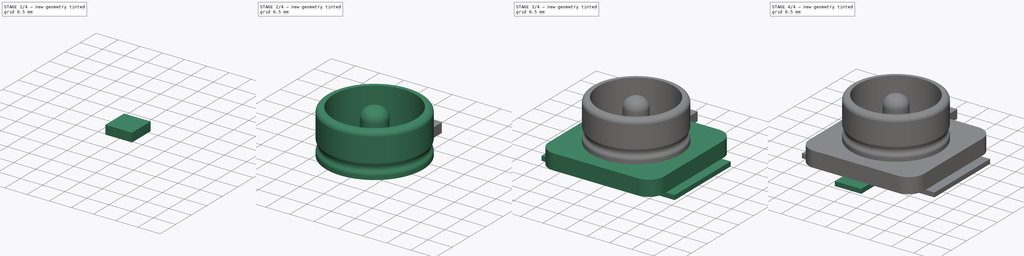
[diagram: build sequence overview — one tinted view per stage of 4, left to right]
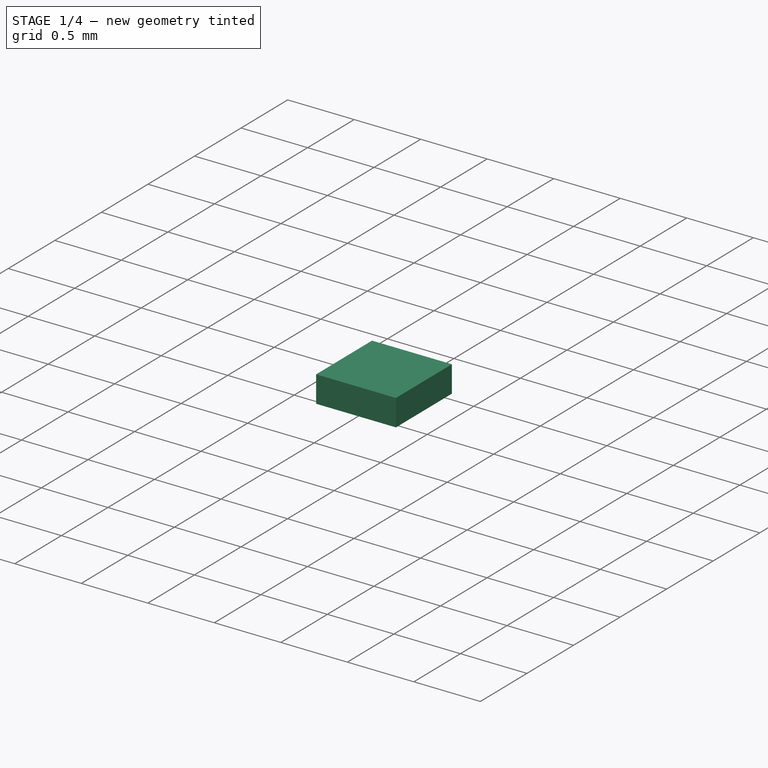
[diagram: stage 1 of 4 — iso view after this stage's code; geometry added in this stage tinted green]
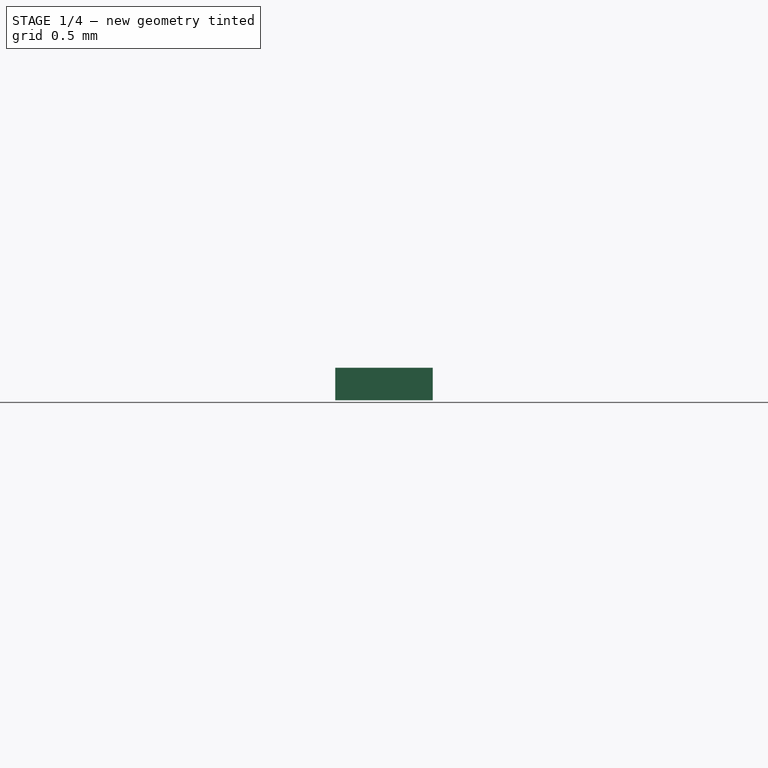
[diagram: stage 1 of 4 — front view after this stage's code; geometry added in this stage tinted green]
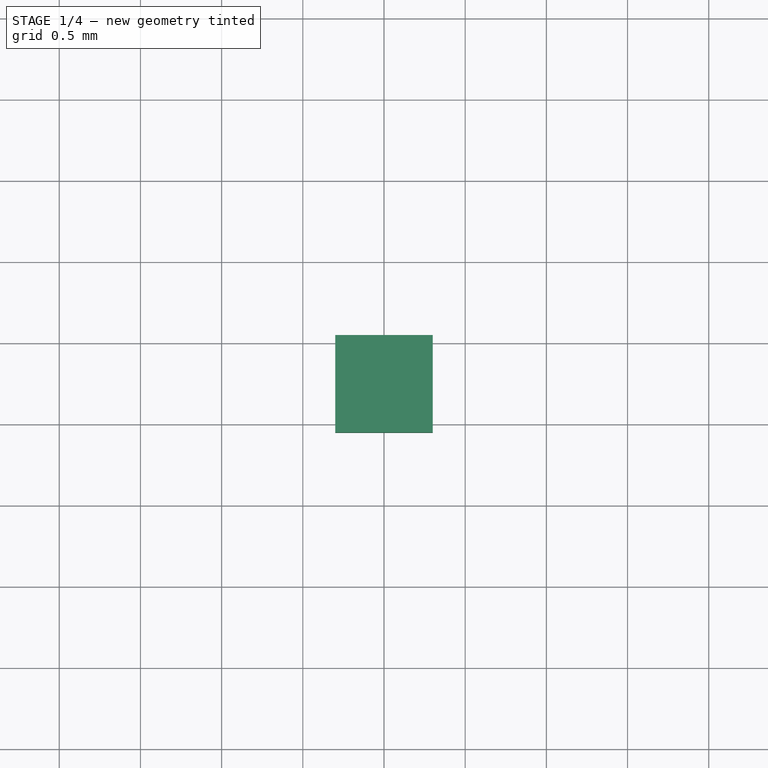
[diagram: stage 1 of 4 — top view after this stage's code; geometry added in this stage tinted green]
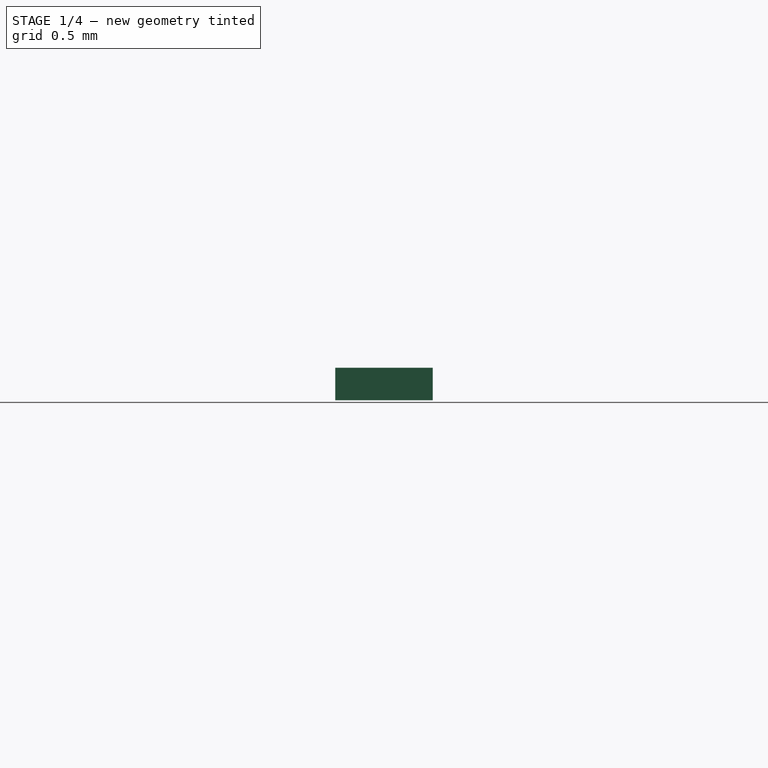
[diagram: stage 1 of 4 — right view after this stage's code; geometry added in this stage tinted green]
FCSTD DOCUMENT  (FreeCAD 0.22R38231 (Git))
Label: U.FL
License: All rights reserved
LicenseURL: https://en.wikipedia.org/wiki/All_rights_reserved
objects: Sketcher::SketchObject×7, PartDesign::Pad×7, PartDesign::Body×7, PartDesign::ShapeBinder×3, PartDesign::Revolution×1, PartDesign::Fillet×1, Part::MultiFuse×1
note: 45 computed .brp shape members not serialized (recipe doc carries the construction recipe); baked Part::Feature solids carry a one-line shape summary decoded from their .brp

FEATURE [PartDesign::Body] Body006
  AllowCompound = false
  Group = -> [CopyPad004,Sketch006,Pad005,Fillet]
  Origin = -> Origin006
  Tip = -> Fillet
FEATURE [PartDesign::ShapeBinder] CopyPad005
  Placement = pos=(0,0,0.35) rot=(0,0,1;0rad)
  TraceSupport = false
FEATURE [Sketcher::SketchObject] Sketch007
  AttachmentSupport = -> [CopyPad005]
  FullyConstrained = true
  MapMode = 5
  Placement = pos=(0,0,0.45) rot=(0,0,1;0rad)
  sketch-geometry (4):
    g0: LineSegment StartX=-0.3 StartY=1.55 StartZ=0 EndX=-0.3 EndY=0.95 EndZ=0
    g1: LineSegment StartX=-0.3 StartY=0.95 StartZ=0 EndX=0.3 EndY=0.95 EndZ=0
    g2: LineSegment StartX=0.3 StartY=0.95 StartZ=0 EndX=0.3 EndY=1.55 EndZ=0
    g3: LineSegment StartX=0.3 StartY=1.55 StartZ=0 EndX=-0.3 EndY=1.55 EndZ=0
  constraints (12):
    c: Coincident(g0,g1)
    c: Coincident(g1,g2)
    c: Coincident(g2,g3)
    c: Coincident(g3,g0)
    c: Vertical(g0)
    c: Vertical(g2)
    c: Horizontal(g1)
    c: Horizontal(g3)
    c: DistanceX(g3,g3) = 0.6
    c: DistanceX(g0,g-1) = 0.3
    c: DistanceY(g-1,g2) = 1.55
    c: DistanceY(g0,g0) = 0.6
FEATURE [PartDesign::Pad] Pad006
  Direction = (0,0,1)
  Length = 0.1
  Length2 = 10
  Placement = pos=(0,0,0.35) rot=(0,0,1;0rad)
  Profile = -> Sketch007
  ReferenceAxis = -> Sketch007 [N_Axis]
  Refine = true
  Suppressed = false
  Type = 0
FEATURE [PartDesign::Pad] Pad007
  BaseFeature = -> Pad006
  Direction = (0,0,-1)
  Length = 0.1
  Length2 = 10
  Placement = pos=(0,0,0.35) rot=(0,0,1;0rad)
  Profile = -> Pad006 [Face5]
  Refine = true
  Suppressed = false
  Type = 0
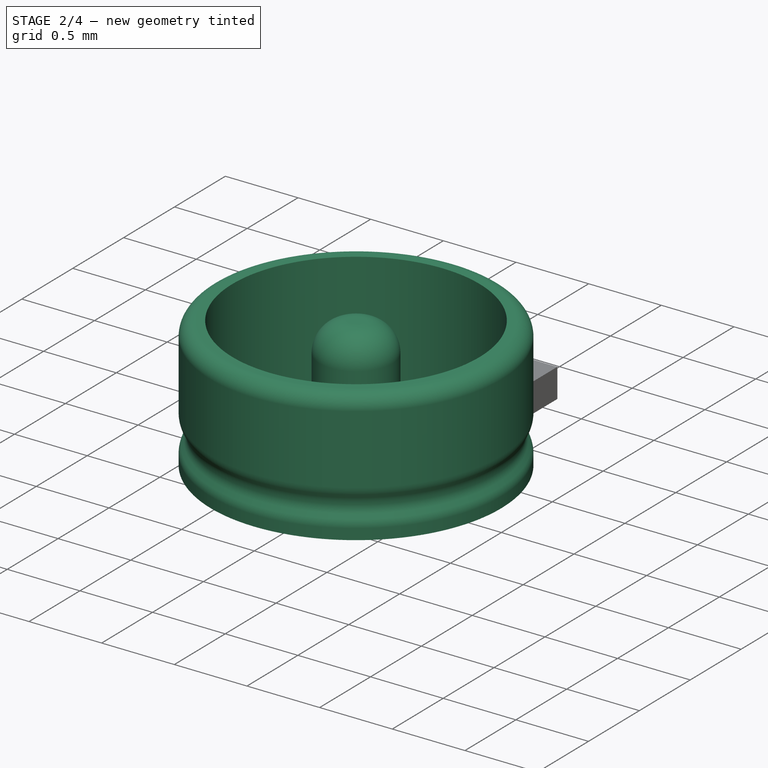
[diagram: stage 2 of 4 — iso view after this stage's code; geometry added in this stage tinted green]
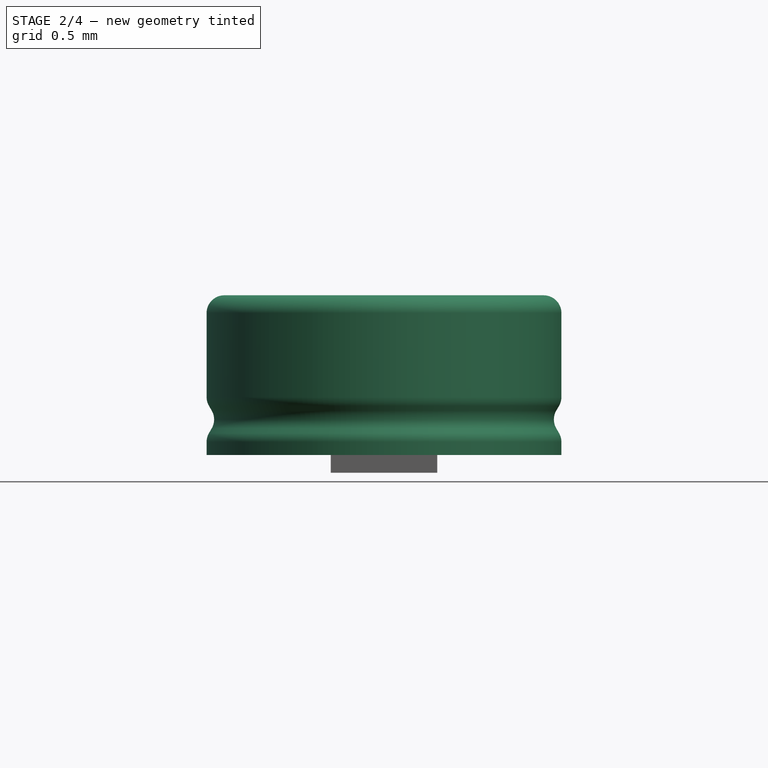
[diagram: stage 2 of 4 — front view after this stage's code; geometry added in this stage tinted green]
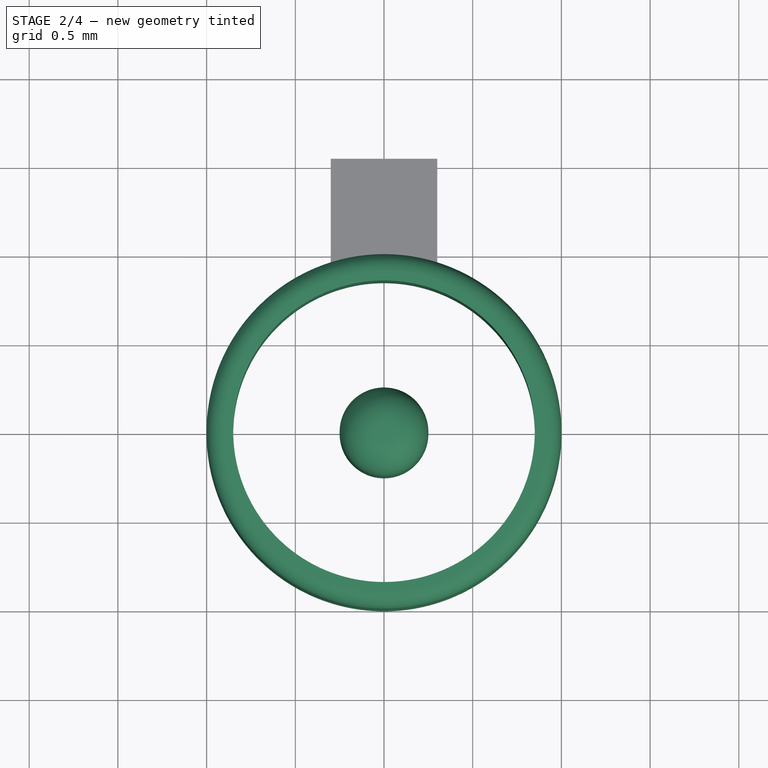
[diagram: stage 2 of 4 — top view after this stage's code; geometry added in this stage tinted green]
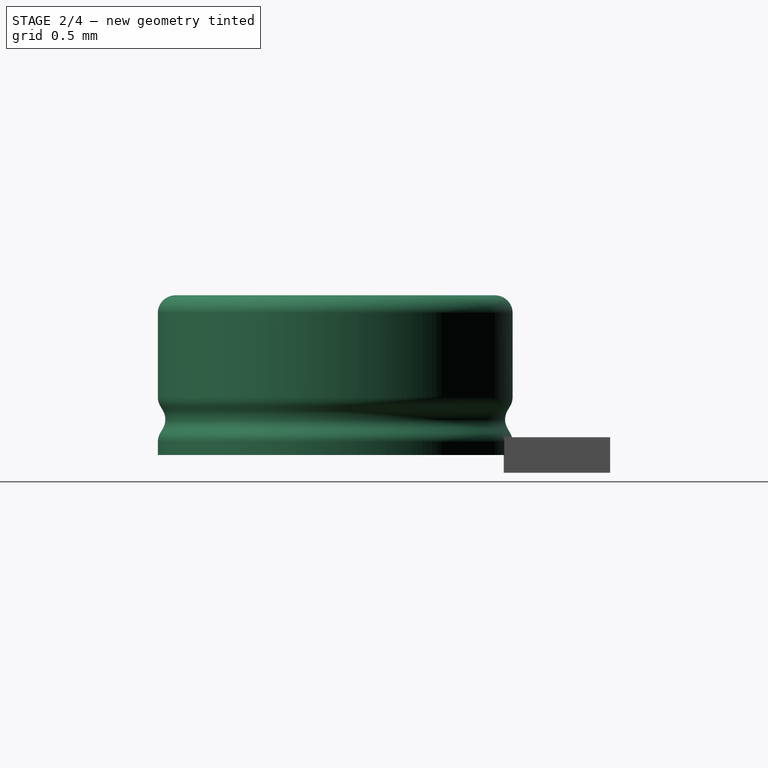
[diagram: stage 2 of 4 — right view after this stage's code; geometry added in this stage tinted green]
FEATURE [PartDesign::Body] Body004
  AllowCompound = false
  Group = -> [CopyPad,Sketch004,Pad004]
  Origin = -> Origin004
  Tip = -> Pad004
FEATURE [Sketcher::SketchObject] Sketch005
  AttachmentSupport = -> [XZ_Plane005]
  FullyConstrained = true
  MapMode = 5
  Placement = pos=(0,0,0) rot=(1,0,0;1.5708rad)
  sketch-geometry (15):
    g0: LineSegment StartX=-0.9 StartY=1.35 StartZ=0 EndX=-0.85 EndY=1.35 EndZ=0
    g1: LineSegment StartX=-0.85 StartY=1.35 StartZ=0 EndX=-0.85 EndY=0.45 EndZ=0
    g2: LineSegment StartX=-1 StartY=1.25 StartZ=0 EndX=-1 EndY=0.776795 EndZ=0
    g3: LineSegment StartX=-0.986603 StartY=0.726795 StartZ=0 EndX=-0.971132 EndY=0.7 EndZ=0
    g4: LineSegment StartX=-0.971132 StartY=0.6 StartZ=0 EndX=-0.986603 EndY=0.573205 EndZ=0
    g5: LineSegment StartX=-1 StartY=0.523205 StartZ=0 EndX=-1 EndY=0.45 EndZ=0
    g6: LineSegment StartX=-1 StartY=0.45 StartZ=0 EndX=-0.85 EndY=0.45 EndZ=0
    g7: ArcOfCircle CenterX=-0.9 CenterY=1.25 CenterZ=0 NormalX=0 NormalY=0 NormalZ=1 AngleXU=0 Radius=0.1 StartAngle=1.5708 EndAngle=3.14159
    g8: GeomPoint X=-1 Y=1.35 Z=0
    g9: ArcOfCircle CenterX=-0.9 CenterY=0.776795 CenterZ=0 NormalX=0 NormalY=0 NormalZ=1 AngleXU=0 Radius=0.1 StartAngle=3.14159 EndAngle=3.66519
    g10: GeomPoint X=-1 Y=0.75 Z=0
    g11: ArcOfCircle CenterX=-1.05774 CenterY=0.65 CenterZ=0 NormalX=0 NormalY=0 NormalZ=1 AngleXU=0 Radius=0.1 StartAngle=5.75959 EndAngle=6.80678
    g12: GeomPoint X=-0.942265 Y=0.65 Z=0
    g13: ArcOfCircle CenterX=-0.9 CenterY=0.523205 CenterZ=0 NormalX=0 NormalY=0 NormalZ=1 AngleXU=0 Radius=0.1 StartAngle=2.61799 EndAngle=3.14159
    g14: GeomPoint X=-1 Y=0.55 Z=0
  constraints (37):
    c: Horizontal(g0)
    c: Coincident(g1,g0)
    c: Vertical(g1)
    c: Vertical(g2)
    c: Vertical(g5)
    c: Coincident(g6,g5)
    c: Horizontal(g6)
    c: DistanceY(g1,g1) = 0.9
    c: Coincident(g1,g6)
    c: DistanceX(g8,g-1) = 1
    c: DistanceX(g8,g0) = 0.15
    c: DistanceY(g10,g8) = 0.6
    c: DistanceY(g-1,g1) = 0.45
    c: DistanceY(g5,g14) = 0.1
    c: PointOnObject(g8,g0)
    c: PointOnObject(g8,g2)
    c: Tangent(g0,g7) = 1.5708
    c: Tangent(g2,g7) = -1.5708
    c: PointOnObject(g10,g3)
    c: PointOnObject(g10,g2)
    c: Tangent(g3,g9) = -1.5708
    c: Tangent(g2,g9) = -1.5708
    c: PointOnObject(g12,g4)
    c: PointOnObject(g12,g3)
    c: Tangent(g4,g11) = 1.5708
    c: Tangent(g3,g11) = 1.5708
    c: PointOnObject(g14,g5)
    c: PointOnObject(g14,g4)
    c: Tangent(g5,g13) = -1.5708
    c: Tangent(g4,g13) = -1.5708
    c: Radius(g13) = 0.1
    c: Radius(g11) = 0.1
    c: Radius(g9) = 0.1
    c: Radius(g7) = 0.1
    c: Angle(g3,g2) = 2.61799
    c: Angle(g5,g4) = 2.61799
    c: DistanceX(g6,g6) = 0.15
FEATURE [PartDesign::Revolution] Revolution
  Angle = 360
  Angle2 = 60
  Axis = (0,2e-16,1)
  Base = (0,0,0)
  Placement = pos=(0,0,0) rot=(1,0,0;1.5708rad)
  Profile = -> Sketch005
  ReferenceAxis = -> Sketch005 [V_Axis]
  Refine = true
  Suppressed = false
  Type = 0
FEATURE [PartDesign::Body] Body005
  AllowCompound = false
  Group = -> [Sketch005,Revolution]
  Origin = -> Origin005
  Tip = -> Revolution
FEATURE [PartDesign::ShapeBinder] CopyPad004
  Placement = pos=(0,0,0.35) rot=(0,0,1;0rad)
  TraceSupport = false
FEATURE [Sketcher::SketchObject] Sketch006
  AttachmentSupport = -> [CopyPad004]
  FullyConstrained = true
  MapMode = 5
  Placement = pos=(0,0,0.45) rot=(0,0,1;0rad)
  sketch-geometry (1):
    g0: Circle CenterX=0 CenterY=0 CenterZ=0 NormalX=0 NormalY=0 NormalZ=1 AngleXU=0 Radius=0.25
  constraints (2):
    c: Coincident(g0,g-1)
    c: Diameter(g0) = 0.5
FEATURE [PartDesign::Pad] Pad005
  Direction = (0,0,1)
  Length = 0.9
  Length2 = 10
  Placement = pos=(0,0,0.35) rot=(0,0,1;0rad)
  Profile = -> Sketch006
  ReferenceAxis = -> Sketch006 [N_Axis]
  Refine = true
  Suppressed = false
  Type = 0
FEATURE [PartDesign::Fillet] Fillet
  Base = -> Pad005 [Edge3]
  BaseFeature = -> Pad005
  Placement = pos=(0,0,0.35) rot=(0,0,1;0rad)
  Radius = 0.2
  Refine = true
  SupportTransform = false
  Suppressed = false
  UseAllEdges = false
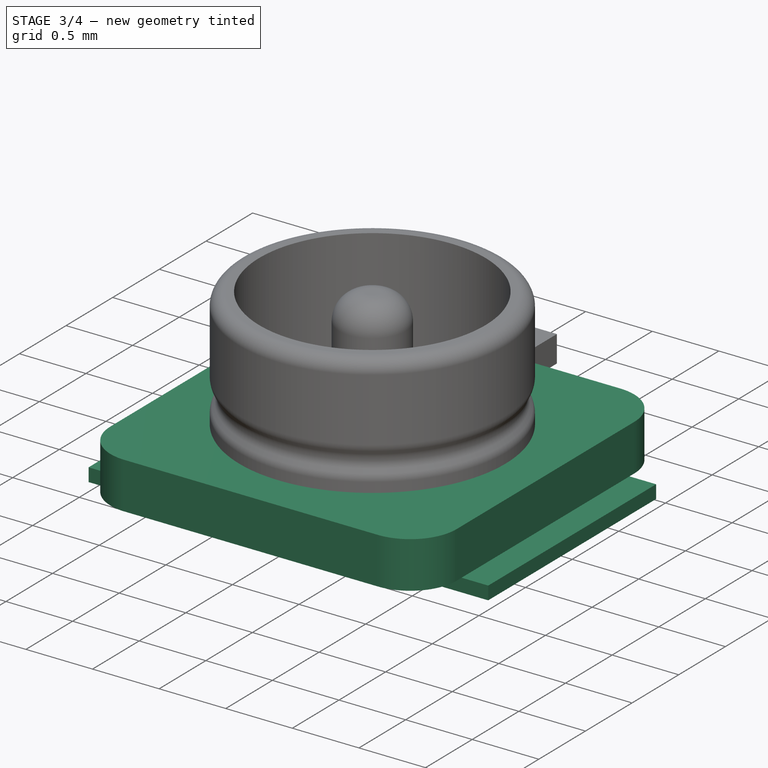
[diagram: stage 3 of 4 — iso view after this stage's code; geometry added in this stage tinted green]
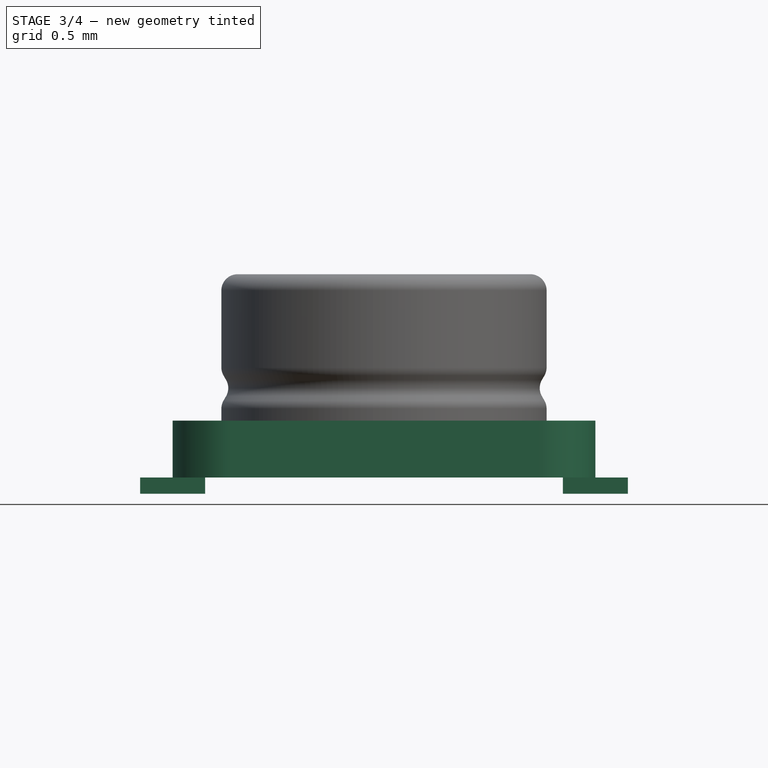
[diagram: stage 3 of 4 — front view after this stage's code; geometry added in this stage tinted green]
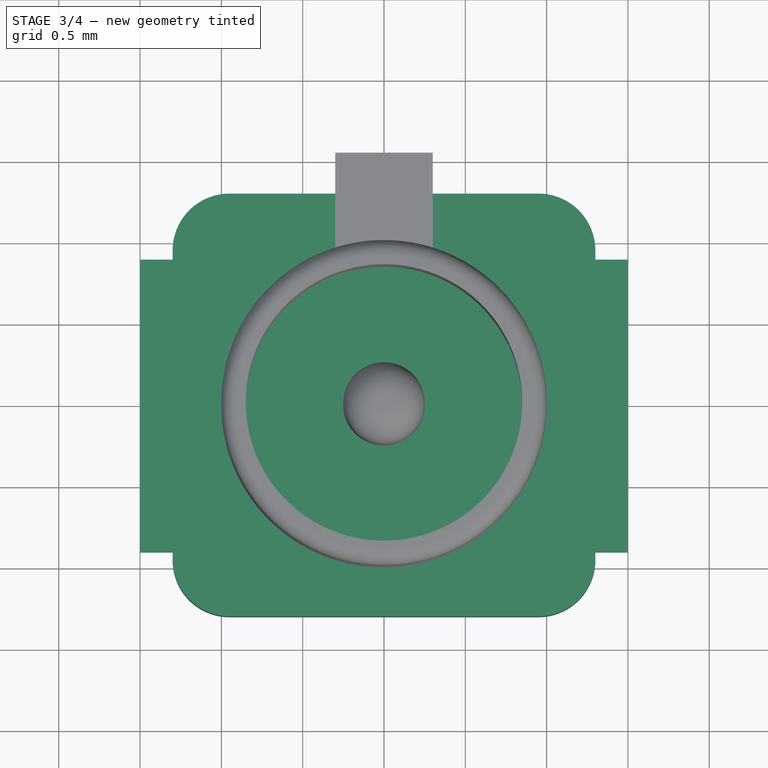
[diagram: stage 3 of 4 — top view after this stage's code; geometry added in this stage tinted green]
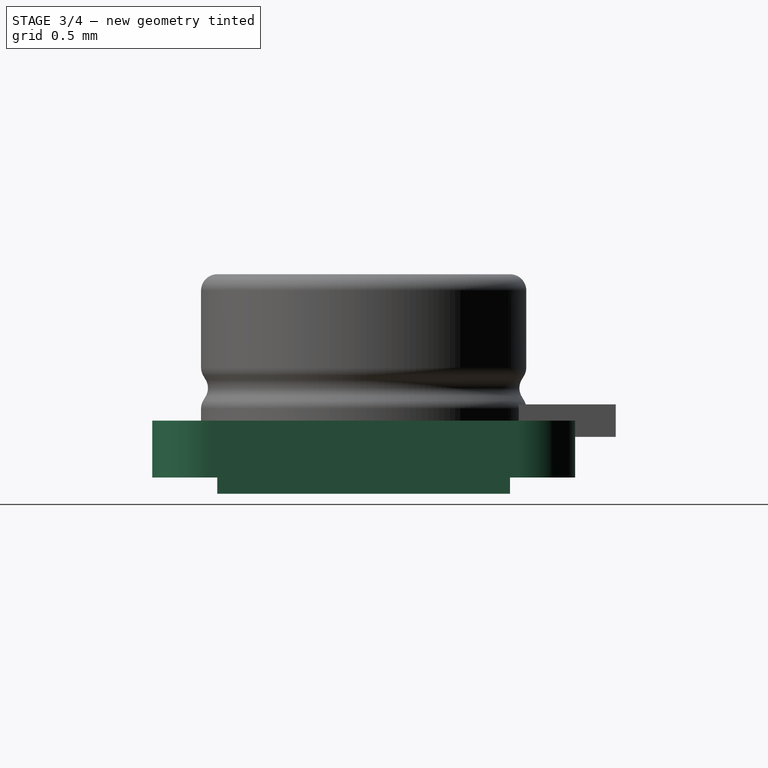
[diagram: stage 3 of 4 — right view after this stage's code; geometry added in this stage tinted green]
FEATURE [PartDesign::Body] Body
  AllowCompound = false
  Group = -> [Sketch,Pad]
  Origin = -> Origin
  Tip = -> Pad
FEATURE [Sketcher::SketchObject] Sketch002
  AttachmentSupport = -> [XY_Plane002]
  FullyConstrained = true
  MapMode = 5
  sketch-geometry (4):
    g0: LineSegment StartX=-1.5 StartY=0.9 StartZ=0 EndX=-1.5 EndY=-0.9 EndZ=0
    g1: LineSegment StartX=-1.5 StartY=-0.9 StartZ=0 EndX=-1.1 EndY=-0.9 EndZ=0
    g2: LineSegment StartX=-1.1 StartY=-0.9 StartZ=0 EndX=-1.1 EndY=0.9 EndZ=0
    g3: LineSegment StartX=-1.1 StartY=0.9 StartZ=0 EndX=-1.5 EndY=0.9 EndZ=0
  constraints (12):
    c: Coincident(g0,g1)
    c: Coincident(g1,g2)
    c: Coincident(g2,g3)
    c: Coincident(g3,g0)
    c: Vertical(g0)
    c: Vertical(g2)
    c: Horizontal(g1)
    c: Horizontal(g3)
    c: DistanceY(g2,g2) = 1.8
    c: DistanceY(g-1,g0) = 0.9
    c: DistanceX(g1,g1) = 0.4
    c: DistanceX(g0,g-1) = 1.5
FEATURE [PartDesign::Pad] Pad002
  Direction = (0,0,1)
  Length = 0.1
  Length2 = 10
  Profile = -> Sketch002
  ReferenceAxis = -> Sketch002 [N_Axis]
  Refine = true
  Suppressed = false
  Type = 0
FEATURE [PartDesign::Body] Body002
  AllowCompound = false
  Group = -> [Sketch002,Pad002]
  Origin = -> Origin002
  Tip = -> Pad002
FEATURE [Sketcher::SketchObject] Sketch003
  AttachmentSupport = -> [XY_Plane003]
  FullyConstrained = true
  MapMode = 5
  sketch-geometry (4):
    g0: LineSegment StartX=1.1 StartY=0.9 StartZ=0 EndX=1.1 EndY=-0.9 EndZ=0
    g1: LineSegment StartX=1.1 StartY=-0.9 StartZ=0 EndX=1.5 EndY=-0.9 EndZ=0
    g2: LineSegment StartX=1.5 StartY=-0.9 StartZ=0 EndX=1.5 EndY=0.9 EndZ=0
    g3: LineSegment StartX=1.5 StartY=0.9 StartZ=0 EndX=1.1 EndY=0.9 EndZ=0
  constraints (12):
    c: Coincident(g0,g1)
    c: Coincident(g1,g2)
    c: Coincident(g2,g3)
    c: Coincident(g3,g0)
    c: Vertical(g0)
    c: Vertical(g2)
    c: Horizontal(g1)
    c: Horizontal(g3)
    c: DistanceX(g3,g3) = 0.4
    c: DistanceX(g-1,g2) = 1.5
    c: DistanceY(g2,g2) = 1.8
    c: DistanceY(g0,g-1) = 0.9
FEATURE [PartDesign::Pad] Pad003
  Direction = (0,0,1)
  Length = 0.1
  Length2 = 10
  Profile = -> Sketch003
  ReferenceAxis = -> Sketch003 [N_Axis]
  Refine = true
  Suppressed = false
  Type = 0
FEATURE [PartDesign::Body] Body003
  AllowCompound = false
  Group = -> [Sketch003,Pad003]
  Origin = -> Origin003
  Tip = -> Pad003
FEATURE [PartDesign::ShapeBinder] CopyPad
  Placement = pos=(0,0,0.1) rot=(0,0,1;0rad)
  TraceSupport = false
FEATURE [Sketcher::SketchObject] Sketch004
  AttachmentSupport = -> [CopyPad]
  FullyConstrained = true
  MapMode = 5
  Placement = pos=(0,0,0.1) rot=(0,0,1;0rad)
  sketch-geometry (12):
    g0: LineSegment StartX=-1.3 StartY=0.95 StartZ=0 EndX=-1.3 EndY=-0.95 EndZ=0
    g1: LineSegment StartX=-0.95 StartY=-1.3 StartZ=0 EndX=0.95 EndY=-1.3 EndZ=0
    g2: LineSegment StartX=1.3 StartY=-0.95 StartZ=0 EndX=1.3 EndY=0.95 EndZ=0
    g3: LineSegment StartX=0.95 StartY=1.3 StartZ=0 EndX=-0.95 EndY=1.3 EndZ=0
    g4: ArcOfCircle CenterX=-0.95 CenterY=0.95 CenterZ=0 NormalX=0 NormalY=0 NormalZ=1 AngleXU=0 Radius=0.35 StartAngle=1.5708 EndAngle=3.14159
    g5: GeomPoint X=-1.3 Y=1.3 Z=0
    g6: ArcOfCircle CenterX=0.95 CenterY=0.95 CenterZ=0 NormalX=0 NormalY=0 NormalZ=1 AngleXU=0 Radius=0.35 StartAngle=0 EndAngle=1.5708
    g7: GeomPoint X=1.3 Y=1.3 Z=0
    g8: ArcOfCircle CenterX=0.95 CenterY=-0.95 CenterZ=0 NormalX=0 NormalY=0 NormalZ=1 AngleXU=0 Radius=0.35 StartAngle=4.71239 EndAngle=6.28319
    g9: GeomPoint X=1.3 Y=-1.3 Z=0
    g10: ArcOfCircle CenterX=-0.95 CenterY=-0.95 CenterZ=0 NormalX=0 NormalY=0 NormalZ=1 AngleXU=0 Radius=0.35 StartAngle=3.14159 EndAngle=4.71239
    g11: GeomPoint X=-1.3 Y=-1.3 Z=0
  constraints (28):
    c: Vertical(g0)
    c: Vertical(g2)
    c: Horizontal(g1)
    c: Horizontal(g3)
    c: DistanceX(g5,g7) = 2.6
    c: DistanceY(g9,g7) = 2.6
    c: DistanceY(g-1,g7) = 1.3
    c: DistanceX(g-1,g7) = 1.3
    c: PointOnObject(g5,g0)
    c: PointOnObject(g5,g3)
    c: Tangent(g0,g4) = -1.5708
    c: Tangent(g3,g4) = -1.5708
    c: PointOnObject(g7,g2)
    c: PointOnObject(g7,g3)
    c: Tangent(g2,g6) = -1.5708
    c: Tangent(g3,g6) = -1.5708
    c: PointOnObject(g9,g1)
    c: PointOnObject(g9,g2)
    c: Tangent(g1,g8) = -1.5708
    c: Tangent(g2,g8) = -1.5708
    c: PointOnObject(g11,g1)
    c: PointOnObject(g11,g0)
    c: Tangent(g1,g10) = -1.5708
    c: Tangent(g0,g10) = -1.5708
    c: Radius(g4) = 0.35
    c: Radius(g6) = 0.35
    c: Radius(g8) = 0.35
    c: Radius(g10) = 0.35
FEATURE [PartDesign::Pad] Pad004
  Direction = (0,0,1)
  Length = 0.35
  Length2 = 10
  Placement = pos=(0,0,0.1) rot=(0,0,1;0rad)
  Profile = -> Sketch004
  ReferenceAxis = -> Sketch004 [N_Axis]
  Refine = true
  Suppressed = false
  Type = 0
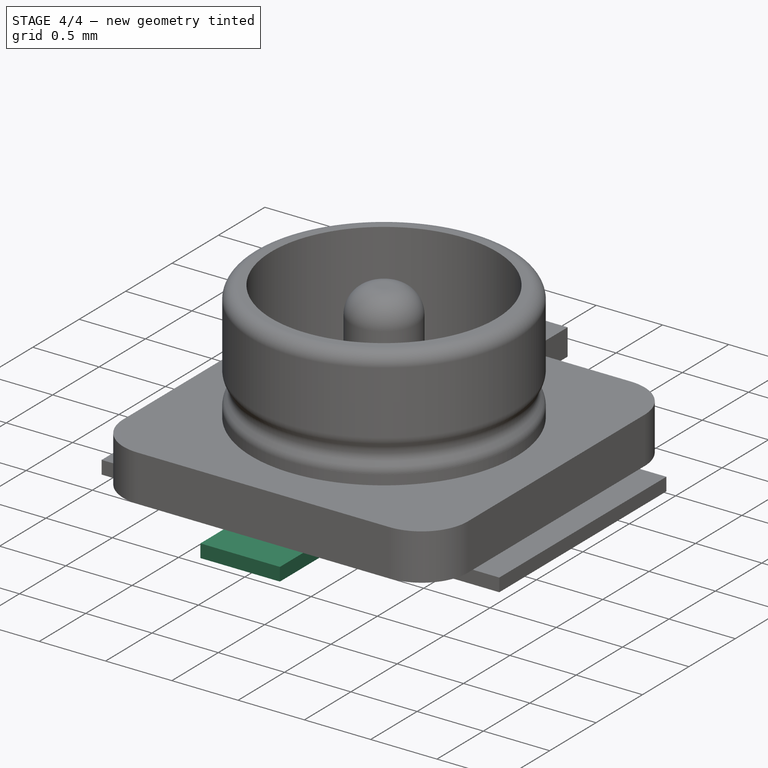
[diagram: stage 4 of 4 — iso view after this stage's code; geometry added in this stage tinted green]
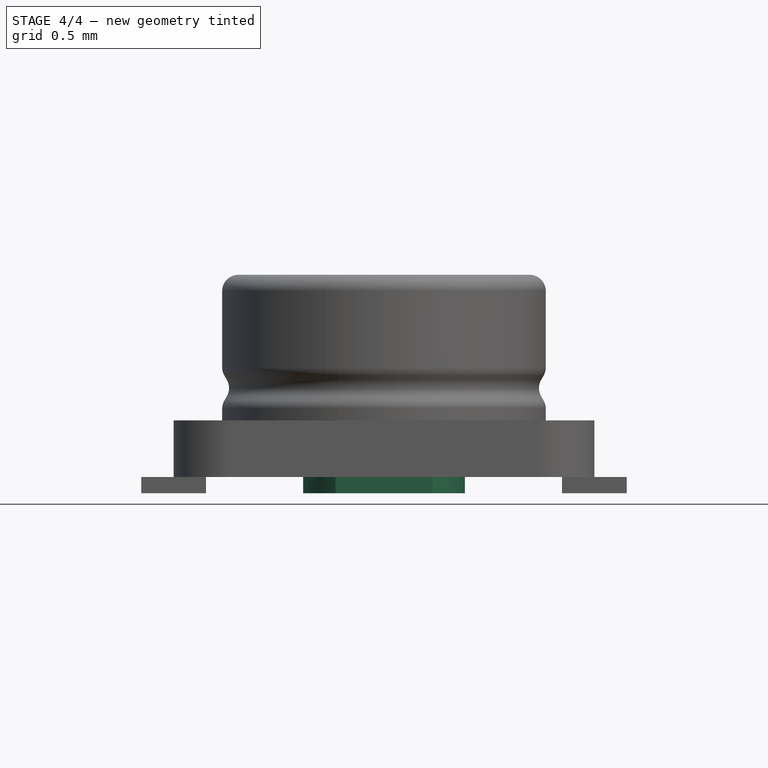
[diagram: stage 4 of 4 — front view after this stage's code; geometry added in this stage tinted green]
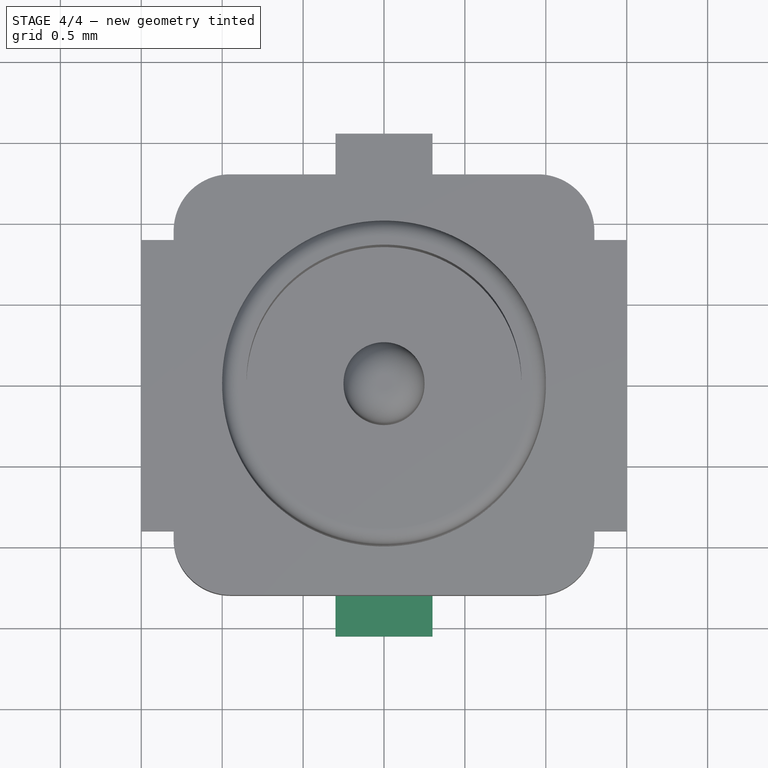
[diagram: stage 4 of 4 — top view after this stage's code; geometry added in this stage tinted green]
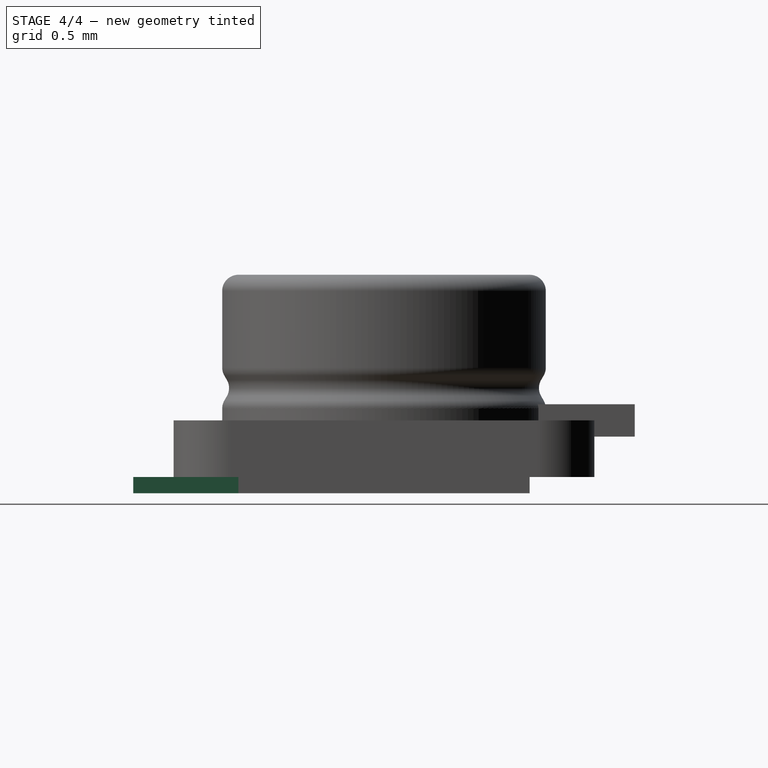
[diagram: stage 4 of 4 — right view after this stage's code; geometry added in this stage tinted green]
FEATURE [Sketcher::SketchObject] Sketch
  AttachmentSupport = -> [XY_Plane]
  FullyConstrained = true
  MapMode = 5
  sketch-geometry (16):
    g0: ArcOfCircle CenterX=0 CenterY=0 CenterZ=0 NormalX=0 NormalY=0 NormalZ=1 AngleXU=0 Radius=0.5 StartAngle=5.35589 EndAngle=10.3521
    g1: LineSegment StartX=-0.3 StartY=-0.4 StartZ=0 EndX=-0.3 EndY=-1.55 EndZ=0
    g2: LineSegment StartX=-0.3 StartY=-1.55 StartZ=0 EndX=0.3 EndY=-1.55 EndZ=0
    g3: LineSegment StartX=0.3 StartY=-1.55 StartZ=0 EndX=0.3 EndY=-0.4 EndZ=0
    g4: LineSegment StartX=-0.3 StartY=1.55 StartZ=0 EndX=0.3 EndY=1.55 EndZ=0
    g5: LineSegment StartX=0.3 StartY=1.55 StartZ=0 EndX=0.3 EndY=1.35 EndZ=0
    g6: LineSegment StartX=0.3 StartY=1.35 StartZ=0 EndX=-0.3 EndY=1.35 EndZ=0
    g7: LineSegment StartX=-0.3 StartY=1.35 StartZ=0 EndX=-0.3 EndY=1.55 EndZ=0
    g8: LineSegment StartX=-1.5 StartY=0.9 StartZ=0 EndX=-1.5 EndY=-0.9 EndZ=0
    g9: LineSegment StartX=-1.5 StartY=-0.9 StartZ=0 EndX=-1.1 EndY=-0.9 EndZ=0
    g10: LineSegment StartX=-1.1 StartY=-0.9 StartZ=0 EndX=-1.1 EndY=0.9 EndZ=0
    g11: LineSegment StartX=-1.1 StartY=0.9 StartZ=0 EndX=-1.5 EndY=0.9 EndZ=0
    g12: LineSegment StartX=1.1 StartY=0.9 StartZ=0 EndX=1.1 EndY=-0.9 EndZ=0
    g13: LineSegment StartX=1.1 StartY=-0.9 StartZ=0 EndX=1.5 EndY=-0.9 EndZ=0
    g14: LineSegment StartX=1.5 StartY=-0.9 StartZ=0 EndX=1.5 EndY=0.9 EndZ=0
    g15: LineSegment StartX=1.5 StartY=0.9 StartZ=0 EndX=1.1 EndY=0.9 EndZ=0
  constraints (48):
    c: Coincident(g0,g-1)
    c: Coincident(g1,g2)
    c: Coincident(g2,g3)
    c: Vertical(g1)
    c: Vertical(g3)
    c: Horizontal(g2)
    c: Coincident(g4,g5)
    c: Coincident(g5,g6)
    c: Coincident(g6,g7)
    c: Coincident(g7,g4)
    c: Horizontal(g4)
    c: Horizontal(g6)
    c: Vertical(g5)
    c: Vertical(g7)
    c: Coincident(g8,g9)
    c: Coincident(g9,g10)
    c: Coincident(g10,g11)
    c: Coincident(g11,g8)
    c: Vertical(g8)
    c: Vertical(g10)
    c: Horizontal(g9)
    c: Horizontal(g11)
    c: DistanceX(g11,g11) = 0.4
    c: DistanceY(g10,g10) = 1.8
    c: Coincident(g12,g13)
    c: Coincident(g13,g14)
    c: Coincident(g14,g15)
    c: Coincident(g15,g12)
    c: Vertical(g12)
    c: Vertical(g14)
    c: Horizontal(g13)
    c: Horizontal(g15)
    c: DistanceX(g15,g15) = 0.4
    c: DistanceY(g14,g14) = 1.8
    c: DistanceX(g6,g6) = 0.6
    c: DistanceX(g2,g2) = 0.6
    c: Diameter(g0) = 1
    c: DistanceX(g-1,g4) = 0.3
    c: DistanceY(g1,g-1) = 1.55
    c: DistanceX(g-1,g14) = 1.5
    c: DistanceX(g8,g-1) = 1.5
    c: DistanceY(g-1,g14) = 0.9
    c: DistanceY(g-1,g8) = 0.9
    c: DistanceY(g5,g5) = 0.2
    c: DistanceY(g-1,g4) = 1.55
    c: DistanceX(g-1,g3) = 0.3
    c: Coincident(g0,g1)
    c: Coincident(g0,g3)
FEATURE [PartDesign::Pad] Pad
  Direction = (0,0,1)
  Length = 0.1
  Length2 = 10
  Profile = -> Sketch
  ReferenceAxis = -> Sketch [N_Axis]
  Refine = true
  Suppressed = false
  Type = 0
FEATURE [PartDesign::Body] Body007
  AllowCompound = false
  Group = -> [CopyPad005,Sketch007,Pad006,Pad007]
  Origin = -> Origin007
  Tip = -> Pad007
FEATURE [Part::MultiFuse] Fusion
  Shapes = -> [Body,Body002,Body003,Body004,Body005,Body006,Body007]
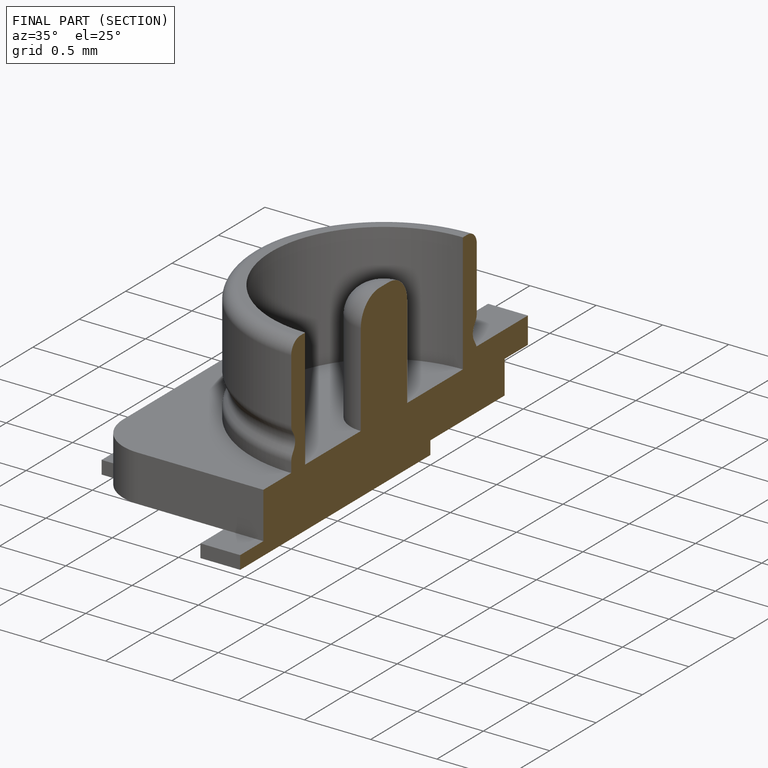
[diagram: finished part — half-section view (interior)]
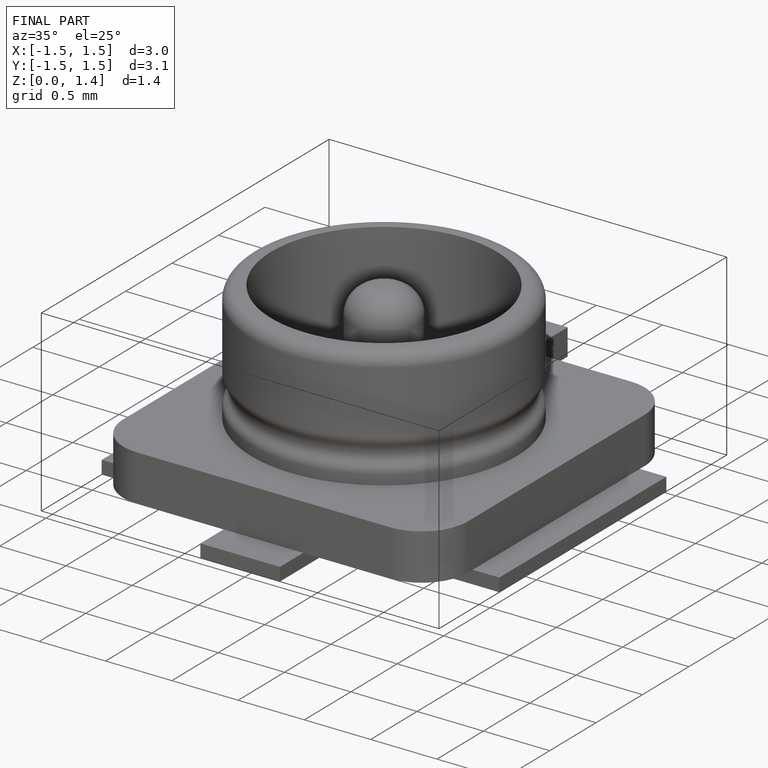
[diagram: finished part — iso view with bounding-box wireframe]
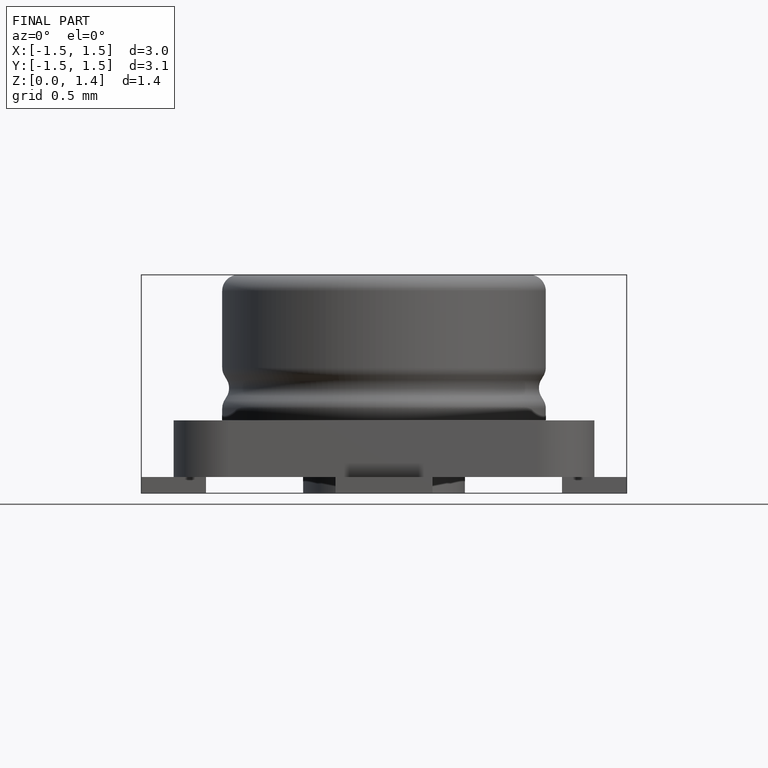
[diagram: finished part — front view with bounding-box wireframe]
